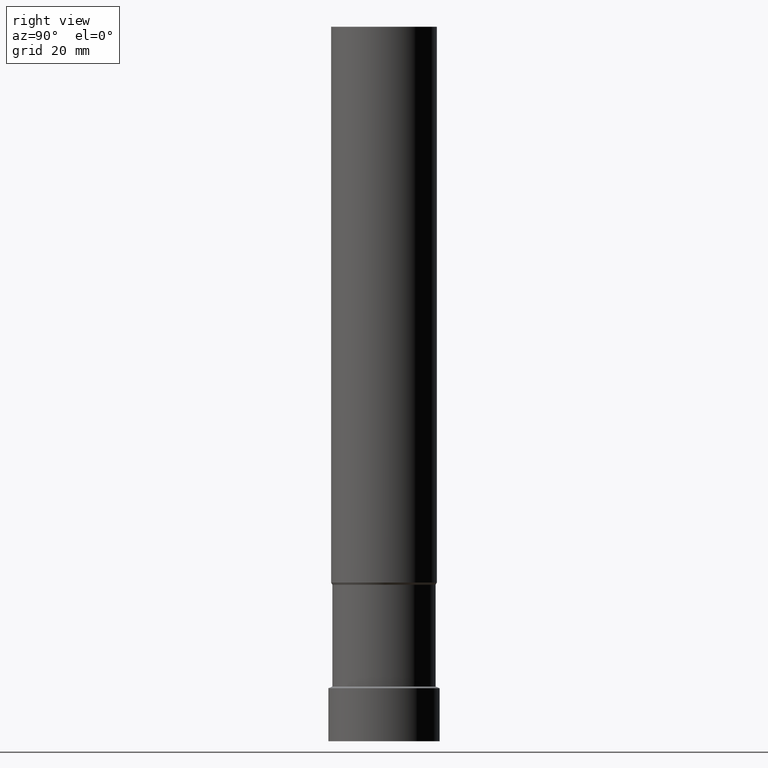
[diagram: clean part render]
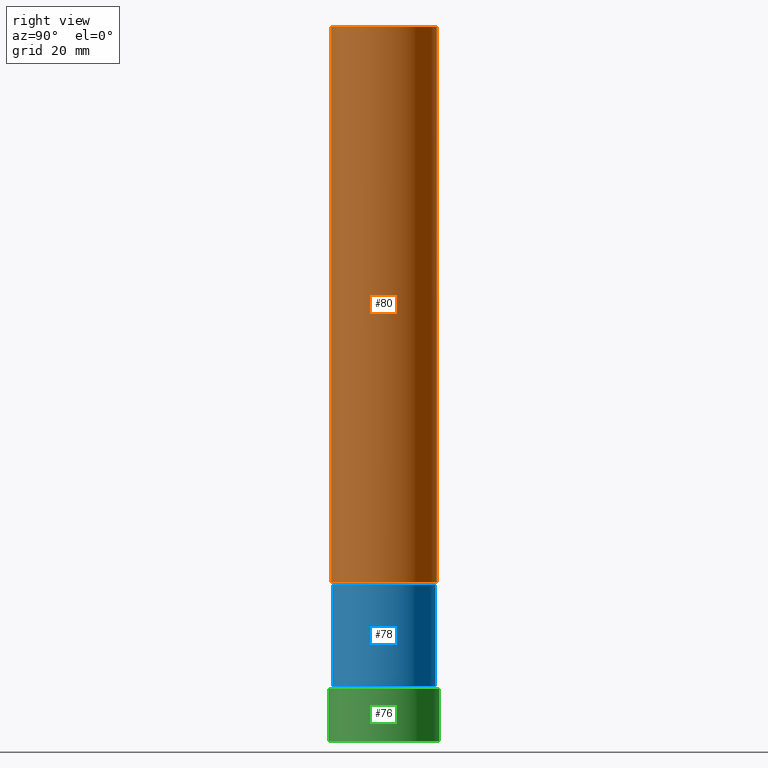
[diagram: same view with three faces highlighted in distinct colors, each labeled with its STEP entity id]
A machine part, right view with three faces highlighted in distinct colors.
Their STEP definitions:

[orange] entity #80 — the highlighted cylindrical surface (bore or boss wall) has radius 10 mm, axis along (0, 0, -1).
#80=ADVANCED_FACE('',(#97,#98),#99,.T.);
#97=FACE_BOUND('',#116,.T.);
#98=FACE_BOUND('',#117,.T.);
#99=CYLINDRICAL_SURFACE('',#118,10.0);
#116=EDGE_LOOP('',(#145));
#117=EDGE_LOOP('',(#146));
#118=AXIS2_PLACEMENT_3D('',#147,#148,#149);
#145=ORIENTED_EDGE('',*,*,#159,.F.);
#146=ORIENTED_EDGE('',*,*,#158,.T.);
#147=CARTESIAN_POINT('',(-5.05166804648281E-015,-1.59025491082637E-015,82.4999999999996));
#148=DIRECTION('',(6.12323399573677E-017,2.19486199658015E-017,-1.0));
#149=DIRECTION('',(-6.17111809011005E-033,1.0,2.19486199658015E-017));
#158=EDGE_CURVE('',#168,#168,#169,.T.);
#159=EDGE_CURVE('',#170,#170,#171,.T.);
#168=VERTEX_POINT('',#180);
#169=CIRCLE('',#181,10.0000000000001);
#170=VERTEX_POINT('',#182);
#171=CIRCLE('',#183,9.99999999999999);
#180=CARTESIAN_POINT('',(-1.83697019872098E-015,10.0000000000001,29.9999999999993));
#181=AXIS2_PLACEMENT_3D('',#196,#197,#198);
#182=CARTESIAN_POINT('',(-8.26636589424463E-015,9.99999999999999,135.0));
#183=AXIS2_PLACEMENT_3D('',#199,#200,#201);
#196=CARTESIAN_POINT('',(-1.83697019872098E-015,-4.37952362621783E-016,29.9999999999993));
#197=DIRECTION('',(-6.12323399573677E-017,-2.19486199658015E-017,1.0));
#198=DIRECTION('',(-6.17111809011005E-033,1.0,2.19486199658015E-017));
#199=CARTESIAN_POINT('',(-8.26636589424463E-015,-2.74255745903095E-015,135.0));
#200=DIRECTION('',(-6.12323399573676E-017,-2.19486199658015E-017,1.0));
#201=DIRECTION('',(-6.17111809011005E-033,1.0,2.19486199658015E-017));

[blue] entity #78 — the highlighted cylindrical surface (bore or boss wall) has radius 9.75 mm, axis along (0, 0, -1).
#78=ADVANCED_FACE('',(#91,#92),#93,.T.);
#91=FACE_BOUND('',#110,.T.);
#92=FACE_BOUND('',#111,.T.);
#93=CYLINDRICAL_SURFACE('',#112,9.74999999999997);
#110=EDGE_LOOP('',(#135));
#111=EDGE_LOOP('',(#136));
#112=AXIS2_PLACEMENT_3D('',#137,#138,#139);
#135=ORIENTED_EDGE('',*,*,#157,.F.);
#136=ORIENTED_EDGE('',*,*,#156,.T.);
#137=CARTESIAN_POINT('',(-1.22180638634603E-015,-2.17448022204089E-016,19.9536125386797));
#138=DIRECTION('',(6.12323399573677E-017,2.19486199658015E-017,-1.0));
#139=DIRECTION('',(-6.17111809011005E-033,1.0,2.19486199658015E-017));
#156=EDGE_CURVE('',#164,#164,#165,.T.);
#157=EDGE_CURVE('',#166,#166,#167,.T.);
#164=VERTEX_POINT('',#176);
#165=CIRCLE('',#177,9.75000000000021);
#166=VERTEX_POINT('',#178);
#167=CIRCLE('',#179,9.74999999999973);
#176=CARTESIAN_POINT('',(-6.33156954939073E-016,9.75000000000021,10.3402377792503));
#177=AXIS2_PLACEMENT_3D('',#190,#191,#192);
#178=CARTESIAN_POINT('',(-1.81045581775299E-015,9.74999999999973,29.5669872981091));
#179=AXIS2_PLACEMENT_3D('',#193,#194,#195);
#190=CARTESIAN_POINT('',(-6.33156954939073E-016,-6.44771302054442E-018,10.3402377792503));
#191=DIRECTION('',(-6.12323399573677E-017,-2.19486199658015E-017,1.0));
#192=DIRECTION('',(-6.17111809011005E-033,1.0,2.19486199658015E-017));
#193=CARTESIAN_POINT('',(-1.81045581775299E-015,-4.28448331387632E-016,29.5669872981091));
#194=DIRECTION('',(-6.12323399573677E-017,-2.19486199658015E-017,1.0));
#195=DIRECTION('',(-6.17111809011005E-033,1.0,2.19486199658015E-017));

[green] entity #76 — the highlighted cylindrical surface (bore or boss wall) has radius 10.5 mm, axis along (0, 0, -1).
#76=ADVANCED_FACE('',(#85,#86),#87,.T.);
#85=FACE_BOUND('',#104,.T.);
#86=FACE_BOUND('',#105,.T.);
#87=CYLINDRICAL_SURFACE('',#106,10.5);
#104=EDGE_LOOP('',(#125));
#105=EDGE_LOOP('',(#126));
#106=AXIS2_PLACEMENT_3D('',#127,#128,#129);
#125=ORIENTED_EDGE('',*,*,#155,.F.);
#126=ORIENTED_EDGE('',*,*,#154,.T.);
#127=CARTESIAN_POINT('',(-3.06641877598995E-016,1.1059101766705E-016,5.00784189878243));
#128=DIRECTION('',(6.12323399573676E-017,2.19486199658015E-017,-1.0));
#129=DIRECTION('',(-6.17111809011005E-033,1.0,2.19486199658015E-017));
#154=EDGE_CURVE('',#160,#160,#161,.T.);
#155=EDGE_CURVE('',#162,#162,#163,.T.);
#160=VERTEX_POINT('',#172);
#161=CIRCLE('',#173,10.5);
#162=VERTEX_POINT('',#174);
#163=CIRCLE('',#175,10.5);
#172=CARTESIAN_POINT('',(3.34857441731564E-030,10.5,-5.55141208608949E-014));
#173=AXIS2_PLACEMENT_3D('',#184,#185,#186);
#174=CARTESIAN_POINT('',(-6.13283755197994E-016,10.5,10.0156837975649));
#175=AXIS2_PLACEMENT_3D('',#187,#188,#189);
#184=CARTESIAN_POINT('',(3.48065554802404E-030,2.20506236352245E-016,-5.6843418860808E-014));
#185=DIRECTION('',(-6.12323399573677E-017,-2.19486199658015E-017,1.0));
#186=DIRECTION('',(-6.17111809011005E-033,1.0,2.19486199658015E-017));
#187=CARTESIAN_POINT('',(-6.13283755197994E-016,6.7579898185688E-019,10.0156837975649));
#188=DIRECTION('',(-6.12323399573677E-017,-2.19486199658015E-017,1.0));
#189=DIRECTION('',(-6.17111809011005E-033,1.0,2.19486199658015E-017));